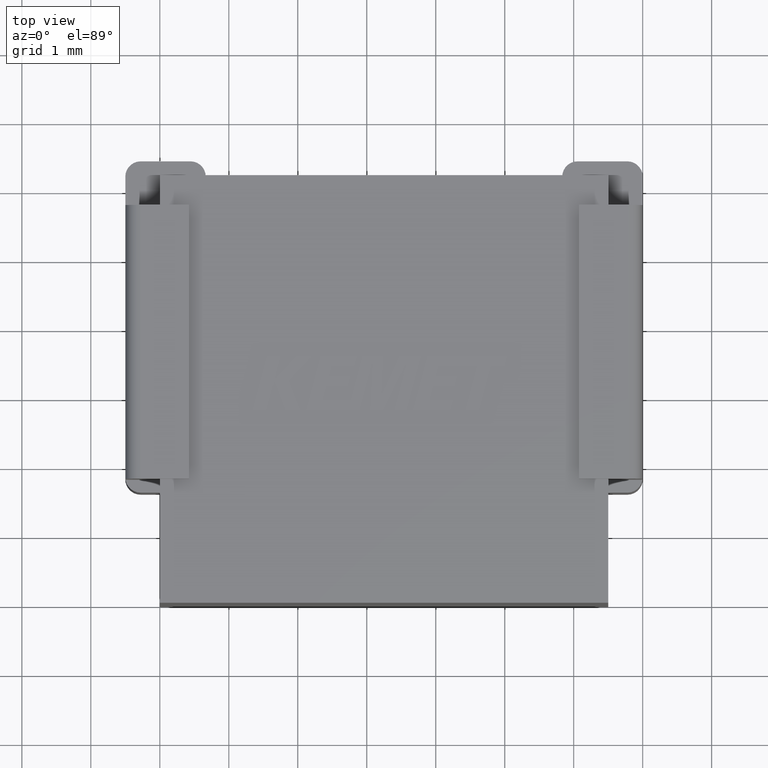
[diagram: clean part render]
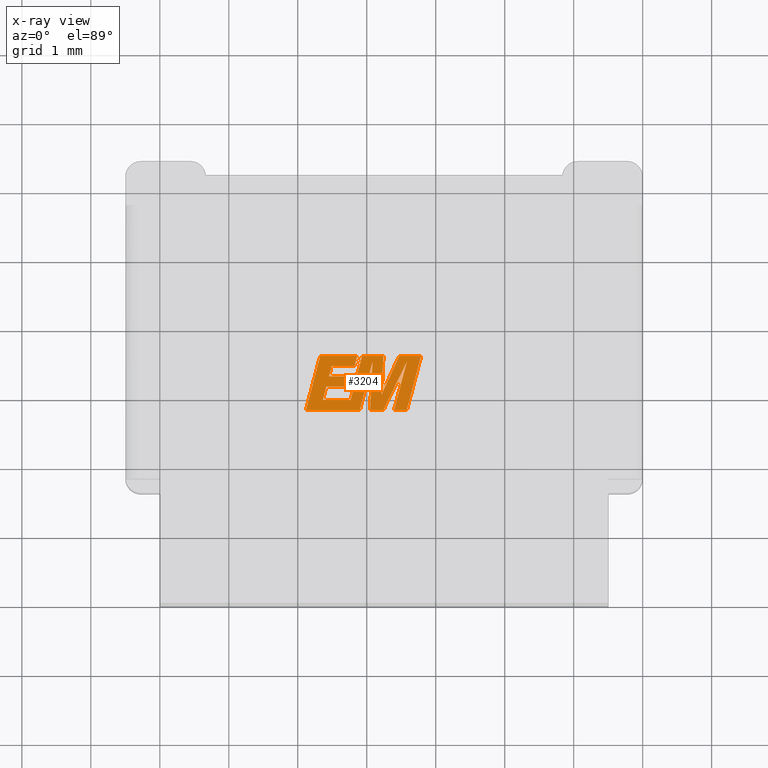
[diagram: x-ray — body ghosted, one internal face saturated and labeled with its STEP entity id]
A machine part, top view, then the same camera in x-ray: the body is ghosted and one INTERNAL B-rep face — a face not visible from any outside direction — is saturated and labeled: STEP entity #3204.
In plain terms, the highlighted planar face has unit normal (0, 0, -1).
Its self-contained STEP definition (entity closure, byte-faithful):
#5 = CARTESIAN_POINT ( 'NONE',  ( 3.241647829343256682, 3.577508665559457235, 0.000000000000000000 ) ) ;
#24 = ORIENTED_EDGE ( 'NONE', *, *, #527, .F. ) ;
#69 = CARTESIAN_POINT ( 'NONE',  ( 2.768857471212896382, 2.789999999999999591, 0.000000000000000000 ) ) ;
#71 = EDGE_CURVE ( 'NONE', #95, #1599, #3389, .T. ) ;
#84 = DIRECTION ( 'NONE',  ( -0.05147999185436848840, -0.9986740261159665621, 0.000000000000000000 ) ) ;
#95 = VERTEX_POINT ( 'NONE', #3558 ) ;
#125 = CARTESIAN_POINT ( 'NONE',  ( 3.788046028393231790, 3.577508665559457235, 0.000000000000000000 ) ) ;
#143 = CARTESIAN_POINT ( 'NONE',  ( 3.239826253915385923, 2.790000000000000036, 0.000000000000000000 ) ) ;
#145 = EDGE_CURVE ( 'NONE', #577, #1206, #4021, .T. ) ;
#212 = EDGE_CURVE ( 'NONE', #3216, #234, #2924, .T. ) ;
#234 = VERTEX_POINT ( 'NONE', #4589 ) ;
#264 = ORIENTED_EDGE ( 'NONE', *, *, #3723, .F. ) ;
#318 = DIRECTION ( 'NONE',  ( -1.000000000000000000, 0.000000000000000000, 0.000000000000000000 ) ) ;
#336 = VECTOR ( 'NONE', #2074, 1000.000000000000000 ) ;
#343 = LINE ( 'NONE', #3299, #4497 ) ;
#352 = VERTEX_POINT ( 'NONE', #3256 ) ;
#439 = CARTESIAN_POINT ( 'NONE',  ( 2.325958538644688378, 3.577508665559457235, 0.000000000000000000 ) ) ;
#486 = LINE ( 'NONE', #143, #2342 ) ;
#517 = CARTESIAN_POINT ( 'NONE',  ( 0.3855709209888825151, -0.05857671900933890397, 0.000000000000000000 ) ) ;
#527 = EDGE_CURVE ( 'NONE', #234, #2171, #3945, .T. ) ;
#577 = VERTEX_POINT ( 'NONE', #2268 ) ;
#628 = CARTESIAN_POINT ( 'NONE',  ( 2.452676942386260883, 3.281133947386681626, 0.000000000000000000 ) ) ;
#645 = VECTOR ( 'NONE', #318, 1000.000000000000000 ) ;
#671 = DIRECTION ( 'NONE',  ( -0.4149825516560580185, -0.9098293696188461954, 0.000000000000000000 ) ) ;
#721 = LINE ( 'NONE', #5, #3684 ) ;
#771 = CARTESIAN_POINT ( 'NONE',  ( 2.821837193327187521, 3.427610434666175543, 0.000000000000000000 ) ) ;
#792 = ORIENTED_EDGE ( 'NONE', *, *, #4140, .F. ) ;
#795 = DIRECTION ( 'NONE',  ( 0.000000000000000000, 0.000000000000000000, -1.000000000000000000 ) ) ;
#800 = CARTESIAN_POINT ( 'NONE',  ( 3.082895381680420765, 3.491098265435112591, 0.000000000000000000 ) ) ;
#805 = LINE ( 'NONE', #69, #4196 ) ;
#824 = CARTESIAN_POINT ( 'NONE',  ( 2.363193424189389713, 2.939824001327098646, 0.000000000000000000 ) ) ;
#844 = ORIENTED_EDGE ( 'NONE', *, *, #3707, .F. ) ;
#885 = ORIENTED_EDGE ( 'NONE', *, *, #145, .F. ) ;
#913 = ORIENTED_EDGE ( 'NONE', *, *, #3700, .F. ) ;
#928 = VECTOR ( 'NONE', #3937, 1000.000000000000114 ) ;
#943 = LINE ( 'NONE', #2761, #3109 ) ;
#962 = CARTESIAN_POINT ( 'NONE',  ( 2.764662518985975037, 2.939824001327098646, 0.000000000000000000 ) ) ;
#996 = VERTEX_POINT ( 'NONE', #1283 ) ;
#1014 = VECTOR ( 'NONE', #4466, 1000.000000000000000 ) ;
#1032 = ORIENTED_EDGE ( 'NONE', *, *, #4003, .F. ) ;
#1060 = CARTESIAN_POINT ( 'NONE',  ( 3.395790415241796367, 2.790000000000000036, 0.000000000000000000 ) ) ;
#1129 = ORIENTED_EDGE ( 'NONE', *, *, #4067, .F. ) ;
#1157 = VECTOR ( 'NONE', #4077, 1000.000000000000114 ) ;
#1172 = DIRECTION ( 'NONE',  ( 0.04944394155300373128, 0.9987769003354568520, 0.000000000000000000 ) ) ;
#1196 = ORIENTED_EDGE ( 'NONE', *, *, #1282, .F. ) ;
#1206 = VERTEX_POINT ( 'NONE', #1275 ) ;
#1233 = DIRECTION ( 'NONE',  ( 0.2585032356124056241, 0.9660103918581398608, 0.000000000000000000 ) ) ;
#1275 = CARTESIAN_POINT ( 'NONE',  ( 3.046754927388160450, 2.790000000000000036, 0.000000000000000000 ) ) ;
#1282 = EDGE_CURVE ( 'NONE', #352, #4048, #721, .T. ) ;
#1283 = CARTESIAN_POINT ( 'NONE',  ( 2.860990086169520108, 3.577508665559457235, 0.000000000000000000 ) ) ;
#1323 = ORIENTED_EDGE ( 'NONE', *, *, #1691, .F. ) ;
#1324 = DIRECTION ( 'NONE',  ( -1.000000000000000000, 0.000000000000000000, 0.000000000000000000 ) ) ;
#1354 = LINE ( 'NONE', #3152, #4352 ) ;
#1428 = CARTESIAN_POINT ( 'NONE',  ( 2.414479750077886067, 3.135550609419712309, 0.000000000000000000 ) ) ;
#1462 = ORIENTED_EDGE ( 'NONE', *, *, #71, .F. ) ;
#1479 = LINE ( 'NONE', #2911, #1522 ) ;
#1512 = CARTESIAN_POINT ( 'NONE',  ( 3.581834920562126268, 3.494474513505587687, 0.000000000000000000 ) ) ;
#1522 = VECTOR ( 'NONE', #1172, 1000.000000000000000 ) ;
#1556 = PLANE ( 'NONE',  #3992 ) ;
#1569 = ORIENTED_EDGE ( 'NONE', *, *, #212, .F. ) ;
#1579 = FACE_OUTER_BOUND ( 'NONE', #2354, .T. ) ;
#1599 = VERTEX_POINT ( 'NONE', #4281 ) ;
#1611 = CARTESIAN_POINT ( 'NONE',  ( 3.213796290680036805, 3.014902356638807568, 0.000000000000000000 ) ) ;
#1639 = LINE ( 'NONE', #2674, #3397 ) ;
#1662 = EDGE_CURVE ( 'NONE', #1206, #3702, #4255, .T. ) ;
#1666 = ORIENTED_EDGE ( 'NONE', *, *, #4310, .F. ) ;
#1672 = VERTEX_POINT ( 'NONE', #1060 ) ;
#1691 = EDGE_CURVE ( 'NONE', #4444, #2381, #805, .T. ) ;
#1808 = VERTEX_POINT ( 'NONE', #2285 ) ;
#1975 = VERTEX_POINT ( 'NONE', #3512 ) ;
#1976 = EDGE_CURVE ( 'NONE', #3025, #2858, #2445, .T. ) ;
#1992 = LINE ( 'NONE', #2298, #1157 ) ;
#2019 = EDGE_CURVE ( 'NONE', #4048, #3928, #343, .T. ) ;
#2063 = VECTOR ( 'NONE', #84, 1000.000000000000000 ) ;
#2070 = LINE ( 'NONE', #3513, #645 ) ;
#2074 = DIRECTION ( 'NONE',  ( 1.000000000000000000, 0.000000000000000000, 0.000000000000000000 ) ) ;
#2123 = DIRECTION ( 'NONE',  ( -1.000000000000000000, 0.000000000000000000, 0.000000000000000000 ) ) ;
#2145 = CARTESIAN_POINT ( 'NONE',  ( 3.470406826072509165, 3.577508665559457235, 0.000000000000000000 ) ) ;
#2159 = CARTESIAN_POINT ( 'NONE',  ( 2.725280610349673616, 3.135550609419712309, 0.000000000000000000 ) ) ;
#2171 = VERTEX_POINT ( 'NONE', #1611 ) ;
#2176 = LINE ( 'NONE', #1512, #3322 ) ;
#2201 = EDGE_CURVE ( 'NONE', #2381, #577, #1354, .T. ) ;
#2263 = DIRECTION ( 'NONE',  ( 1.000000000000000000, 4.171642971715632384E-15, 0.000000000000000000 ) ) ;
#2268 = CARTESIAN_POINT ( 'NONE',  ( 3.082895381680420765, 3.491098265435112591, 0.000000000000000000 ) ) ;
#2269 = VERTEX_POINT ( 'NONE', #771 ) ;
#2280 = VERTEX_POINT ( 'NONE', #3251 ) ;
#2285 = CARTESIAN_POINT ( 'NONE',  ( 2.325958538644688378, 3.577508665559457235, 0.000000000000000000 ) ) ;
#2298 = CARTESIAN_POINT ( 'NONE',  ( 3.579826628195982519, 2.790000000000000036, 0.000000000000000000 ) ) ;
#2342 = VECTOR ( 'NONE', #3286, 1000.000000000000000 ) ;
#2354 = EDGE_LOOP ( 'NONE', ( #1569, #264, #3123, #3119, #3208, #2773, #885, #3129, #1323, #792, #1032, #913, #1129, #2606, #1462, #1666, #4474, #2363, #844, #3833, #1196, #2822, #24 ) ) ;
#2363 = ORIENTED_EDGE ( 'NONE', *, *, #1976, .F. ) ;
#2374 = EDGE_CURVE ( 'NONE', #2280, #1672, #2176, .T. ) ;
#2381 = VERTEX_POINT ( 'NONE', #4384 ) ;
#2420 = DIRECTION ( 'NONE',  ( 0.2540572831189147895, 0.9671891732718246315, 0.000000000000000000 ) ) ;
#2429 = DIRECTION ( 'NONE',  ( -1.000000000000000000, 0.000000000000000000, 0.000000000000000000 ) ) ;
#2431 = CARTESIAN_POINT ( 'NONE',  ( 3.046754927388160450, 2.790000000000000036, 0.000000000000000000 ) ) ;
#2445 = LINE ( 'NONE', #2498, #928 ) ;
#2498 = CARTESIAN_POINT ( 'NONE',  ( 2.363193424189389713, 2.939824001327098646, 0.000000000000000000 ) ) ;
#2604 = VECTOR ( 'NONE', #671, 1000.000000000000114 ) ;
#2606 = ORIENTED_EDGE ( 'NONE', *, *, #3590, .F. ) ;
#2616 = DIRECTION ( 'NONE',  ( -0.2553358256446497943, -0.9668524272826566346, 0.000000000000000000 ) ) ;
#2657 = CARTESIAN_POINT ( 'NONE',  ( 2.933226953254372660, 3.577508665559457235, 0.000000000000000000 ) ) ;
#2668 = EDGE_CURVE ( 'NONE', #3702, #2280, #486, .T. ) ;
#2674 = CARTESIAN_POINT ( 'NONE',  ( 3.395790415241796367, 2.790000000000000036, 0.000000000000000000 ) ) ;
#2722 = EDGE_CURVE ( 'NONE', #1672, #4118, #1639, .T. ) ;
#2761 = CARTESIAN_POINT ( 'NONE',  ( 2.725280610349673616, 3.135550609419712309, 0.000000000000000000 ) ) ;
#2773 = ORIENTED_EDGE ( 'NONE', *, *, #1662, .F. ) ;
#2806 = DIRECTION ( 'NONE',  ( -1.000000000000000000, 0.000000000000000000, 0.000000000000000000 ) ) ;
#2807 = VECTOR ( 'NONE', #3280, 1000.000000000000114 ) ;
#2822 = ORIENTED_EDGE ( 'NONE', *, *, #3002, .F. ) ;
#2825 = VERTEX_POINT ( 'NONE', #2159 ) ;
#2858 = VERTEX_POINT ( 'NONE', #1428 ) ;
#2910 = LINE ( 'NONE', #3583, #4437 ) ;
#2911 = CARTESIAN_POINT ( 'NONE',  ( 3.213796290680036805, 3.014902356638807568, 0.000000000000000000 ) ) ;
#2924 = LINE ( 'NONE', #4340, #4533 ) ;
#2948 = VECTOR ( 'NONE', #1324, 1000.000000000000000 ) ;
#3002 = EDGE_CURVE ( 'NONE', #2171, #352, #1479, .T. ) ;
#3007 = DIRECTION ( 'NONE',  ( -1.000000000000000000, 0.000000000000000000, 0.000000000000000000 ) ) ;
#3025 = VERTEX_POINT ( 'NONE', #824 ) ;
#3053 = CARTESIAN_POINT ( 'NONE',  ( 2.491873876727780157, 3.427610434666175543, 0.000000000000000000 ) ) ;
#3109 = VECTOR ( 'NONE', #2420, 1000.000000000000000 ) ;
#3119 = ORIENTED_EDGE ( 'NONE', *, *, #2374, .F. ) ;
#3123 = ORIENTED_EDGE ( 'NONE', *, *, #2722, .F. ) ;
#3129 = ORIENTED_EDGE ( 'NONE', *, *, #2201, .F. ) ;
#3152 = CARTESIAN_POINT ( 'NONE',  ( 2.897766939544422549, 2.790000000000000036, 0.000000000000000000 ) ) ;
#3175 = VECTOR ( 'NONE', #4114, 1000.000000000000000 ) ;
#3204 = ADVANCED_FACE ( 'NONE', ( #1579 ), #1556, .T. ) ;
#3208 = ORIENTED_EDGE ( 'NONE', *, *, #2668, .F. ) ;
#3216 = VERTEX_POINT ( 'NONE', #125 ) ;
#3251 = CARTESIAN_POINT ( 'NONE',  ( 3.581834920562126268, 3.494474513505587687, 0.000000000000000000 ) ) ;
#3256 = CARTESIAN_POINT ( 'NONE',  ( 3.241647829343256682, 3.577508665559457235, 0.000000000000000000 ) ) ;
#3258 = CARTESIAN_POINT ( 'NONE',  ( 3.579826628195982519, 2.790000000000000036, 0.000000000000000000 ) ) ;
#3280 = DIRECTION ( 'NONE',  ( -0.2558283135930561891, -0.9667222320626193133, 0.000000000000000000 ) ) ;
#3286 = DIRECTION ( 'NONE',  ( 0.4367338172784344663, 0.8995907807694603076, 0.000000000000000000 ) ) ;
#3299 = CARTESIAN_POINT ( 'NONE',  ( 2.933226953254372660, 3.577508665559457235, 0.000000000000000000 ) ) ;
#3322 = VECTOR ( 'NONE', #2616, 1000.000000000000227 ) ;
#3357 = CARTESIAN_POINT ( 'NONE',  ( 2.764662518985975037, 2.939824001327098646, 0.000000000000000000 ) ) ;
#3368 = VECTOR ( 'NONE', #2806, 1000.000000000000000 ) ;
#3389 = LINE ( 'NONE', #3955, #3368 ) ;
#3397 = VECTOR ( 'NONE', #4105, 1000.000000000000000 ) ;
#3453 = LINE ( 'NONE', #962, #2948 ) ;
#3512 = CARTESIAN_POINT ( 'NONE',  ( 2.491873876727780157, 3.427610434666175543, 0.000000000000000000 ) ) ;
#3513 = CARTESIAN_POINT ( 'NONE',  ( 2.860990086169520108, 3.577508665559457235, 0.000000000000000000 ) ) ;
#3530 = DIRECTION ( 'NONE',  ( 0.2553043306056285155, 0.9668607442512142658, 0.000000000000000000 ) ) ;
#3558 = CARTESIAN_POINT ( 'NONE',  ( 2.763521844157277751, 3.281133947386681626, 0.000000000000000000 ) ) ;
#3583 = CARTESIAN_POINT ( 'NONE',  ( 2.414479750077886067, 3.135550609419712309, 0.000000000000000000 ) ) ;
#3590 = EDGE_CURVE ( 'NONE', #1599, #1975, #4492, .T. ) ;
#3684 = VECTOR ( 'NONE', #2123, 1000.000000000000000 ) ;
#3700 = EDGE_CURVE ( 'NONE', #2269, #996, #4520, .T. ) ;
#3702 = VERTEX_POINT ( 'NONE', #3790 ) ;
#3707 = EDGE_CURVE ( 'NONE', #3928, #3025, #3453, .T. ) ;
#3723 = EDGE_CURVE ( 'NONE', #4118, #3216, #1992, .T. ) ;
#3758 = LINE ( 'NONE', #3053, #1014 ) ;
#3790 = CARTESIAN_POINT ( 'NONE',  ( 3.239826253915385923, 2.790000000000000036, 0.000000000000000000 ) ) ;
#3833 = ORIENTED_EDGE ( 'NONE', *, *, #2019, .F. ) ;
#3928 = VERTEX_POINT ( 'NONE', #3357 ) ;
#3937 = DIRECTION ( 'NONE',  ( 0.2534731444080767226, 0.9673424238933606700, 0.000000000000000000 ) ) ;
#3945 = LINE ( 'NONE', #2145, #2604 ) ;
#3955 = CARTESIAN_POINT ( 'NONE',  ( 2.763521844157277751, 3.281133947386681626, 0.000000000000000000 ) ) ;
#3978 = DIRECTION ( 'NONE',  ( 1.000000000000000000, 0.000000000000000000, 0.000000000000000000 ) ) ;
#3992 = AXIS2_PLACEMENT_3D ( 'NONE', #517, #795, #3007 ) ;
#4003 = EDGE_CURVE ( 'NONE', #996, #1808, #2070, .T. ) ;
#4021 = LINE ( 'NONE', #800, #2063 ) ;
#4038 = DIRECTION ( 'NONE',  ( -0.2555603746041578139, -0.9667930983060349925, 0.000000000000000000 ) ) ;
#4048 = VERTEX_POINT ( 'NONE', #2657 ) ;
#4067 = EDGE_CURVE ( 'NONE', #1975, #2269, #3758, .T. ) ;
#4077 = DIRECTION ( 'NONE',  ( 0.2556186134462973825, 0.9667777016769637521, 0.000000000000000000 ) ) ;
#4105 = DIRECTION ( 'NONE',  ( 1.000000000000000000, 0.000000000000000000, 0.000000000000000000 ) ) ;
#4106 = EDGE_CURVE ( 'NONE', #2858, #2825, #2910, .T. ) ;
#4114 = DIRECTION ( 'NONE',  ( 0.2527180501744666352, 0.9675399666763206952, 0.000000000000000000 ) ) ;
#4118 = VERTEX_POINT ( 'NONE', #3258 ) ;
#4127 = VECTOR ( 'NONE', #1233, 1000.000000000000114 ) ;
#4140 = EDGE_CURVE ( 'NONE', #1808, #4444, #4323, .T. ) ;
#4196 = VECTOR ( 'NONE', #2263, 1000.000000000000000 ) ;
#4246 = CARTESIAN_POINT ( 'NONE',  ( 2.117556365643929350, 2.789999999999999591, 0.000000000000000000 ) ) ;
#4255 = LINE ( 'NONE', #2431, #336 ) ;
#4281 = CARTESIAN_POINT ( 'NONE',  ( 2.452676942386260883, 3.281133947386681626, 0.000000000000000000 ) ) ;
#4310 = EDGE_CURVE ( 'NONE', #2825, #95, #943, .T. ) ;
#4323 = LINE ( 'NONE', #439, #2807 ) ;
#4340 = CARTESIAN_POINT ( 'NONE',  ( 3.788046028393231790, 3.577508665559457235, 0.000000000000000000 ) ) ;
#4352 = VECTOR ( 'NONE', #3530, 1000.000000000000114 ) ;
#4384 = CARTESIAN_POINT ( 'NONE',  ( 2.897766939544422549, 2.790000000000000036, 0.000000000000000000 ) ) ;
#4437 = VECTOR ( 'NONE', #3978, 1000.000000000000000 ) ;
#4444 = VERTEX_POINT ( 'NONE', #4246 ) ;
#4466 = DIRECTION ( 'NONE',  ( 1.000000000000000000, 0.000000000000000000, 0.000000000000000000 ) ) ;
#4471 = CARTESIAN_POINT ( 'NONE',  ( 2.821837193327187521, 3.427610434666175543, 0.000000000000000000 ) ) ;
#4474 = ORIENTED_EDGE ( 'NONE', *, *, #4106, .F. ) ;
#4492 = LINE ( 'NONE', #628, #4127 ) ;
#4497 = VECTOR ( 'NONE', #4038, 1000.000000000000114 ) ;
#4520 = LINE ( 'NONE', #4471, #3175 ) ;
#4533 = VECTOR ( 'NONE', #2429, 1000.000000000000000 ) ;
#4589 = CARTESIAN_POINT ( 'NONE',  ( 3.470406826072509165, 3.577508665559457235, 0.000000000000000000 ) ) ;